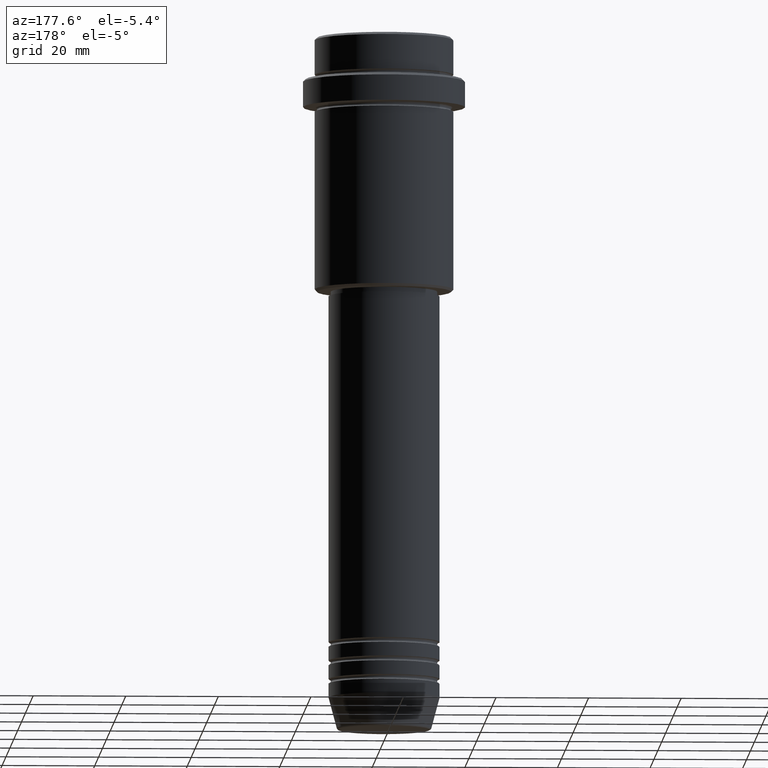
[diagram: clean part render]
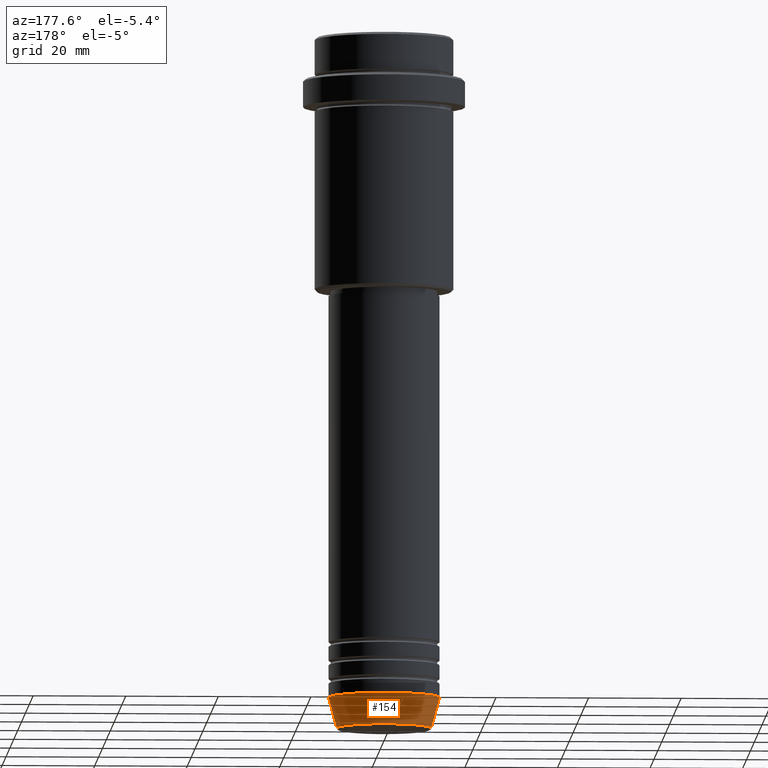
[diagram: same view with one face highlighted and labeled with its STEP entity id]
A machine part, auxiliary view. The second image highlights one B-rep face of the part: STEP entity #154.
In plain terms, the highlighted conical surface has half-angle 15 deg.
Its self-contained STEP definition (entity closure, byte-faithful):
#20 = VERTEX_POINT ( 'NONE', #1358 ) ;
#154 = ADVANCED_FACE ( 'NONE', ( #1075 ), #1260, .T. ) ;
#165 = DIRECTION ( 'NONE',  ( -0.000000000000000000, -0.000000000000000000, 1.000000000000000000 ) ) ;
#216 = ORIENTED_EDGE ( 'NONE', *, *, #729, .T. ) ;
#337 = AXIS2_PLACEMENT_3D ( 'NONE', #925, #165, #1242 ) ;
#359 = VECTOR ( 'NONE', #373, 1000.000000000000000 ) ;
#373 = DIRECTION ( 'NONE',  ( 0.2588190451025222938, 0.000000000000000000, 0.9659258262890678681 ) ) ;
#421 = CIRCLE ( 'NONE', #1219, 12.00000000000000000 ) ;
#467 = VERTEX_POINT ( 'NONE', #543 ) ;
#504 = EDGE_CURVE ( 'NONE', #783, #554, #1014, .T. ) ;
#543 = CARTESIAN_POINT ( 'NONE',  ( 12.00000000000000000, 0.000000000000000000, -143.0000000000000000 ) ) ;
#554 = VERTEX_POINT ( 'NONE', #873 ) ;
#575 = CARTESIAN_POINT ( 'NONE',  ( 0.000000000000000000, 0.000000000000000000, -143.0000000000000000 ) ) ;
#593 = DIRECTION ( 'NONE',  ( -0.000000000000000000, -0.000000000000000000, 1.000000000000000000 ) ) ;
#629 = CIRCLE ( 'NONE', #337, 10.22365507213718416 ) ;
#702 = EDGE_LOOP ( 'NONE', ( #216, #806, #939, #1251 ) ) ;
#718 = AXIS2_PLACEMENT_3D ( 'NONE', #875, #976, #854 ) ;
#729 = EDGE_CURVE ( 'NONE', #20, #783, #629, .T. ) ;
#769 = CARTESIAN_POINT ( 'NONE',  ( -12.00000000000000000, 1.469576158976823947E-15, -143.0000000000000000 ) ) ;
#783 = VERTEX_POINT ( 'NONE', #1393 ) ;
#806 = ORIENTED_EDGE ( 'NONE', *, *, #504, .T. ) ;
#854 = DIRECTION ( 'NONE',  ( 1.000000000000000000, 0.000000000000000000, 0.000000000000000000 ) ) ;
#873 = CARTESIAN_POINT ( 'NONE',  ( -12.00000000000000000, 1.469576158976823947E-15, -143.0000000000000000 ) ) ;
#875 = CARTESIAN_POINT ( 'NONE',  ( 0.000000000000000000, 0.000000000000000000, -143.0000000000000000 ) ) ;
#925 = CARTESIAN_POINT ( 'NONE',  ( 0.000000000000000000, 0.000000000000000000, -149.6294095225512422 ) ) ;
#939 = ORIENTED_EDGE ( 'NONE', *, *, #1225, .F. ) ;
#976 = DIRECTION ( 'NONE',  ( -0.000000000000000000, -0.000000000000000000, 1.000000000000000000 ) ) ;
#990 = VECTOR ( 'NONE', #1106, 1000.000000000000000 ) ;
#1014 = LINE ( 'NONE', #769, #990 ) ;
#1021 = DIRECTION ( 'NONE',  ( 1.000000000000000000, 0.000000000000000000, 0.000000000000000000 ) ) ;
#1028 = LINE ( 'NONE', #1340, #359 ) ;
#1075 = FACE_OUTER_BOUND ( 'NONE', #702, .T. ) ;
#1106 = DIRECTION ( 'NONE',  ( -0.2588190451025222938, 3.169619151431783430E-17, 0.9659258262890678681 ) ) ;
#1219 = AXIS2_PLACEMENT_3D ( 'NONE', #575, #593, #1021 ) ;
#1225 = EDGE_CURVE ( 'NONE', #467, #554, #421, .T. ) ;
#1242 = DIRECTION ( 'NONE',  ( 1.000000000000000000, 0.000000000000000000, 0.000000000000000000 ) ) ;
#1243 = EDGE_CURVE ( 'NONE', #20, #467, #1028, .T. ) ;
#1251 = ORIENTED_EDGE ( 'NONE', *, *, #1243, .F. ) ;
#1260 = CONICAL_SURFACE ( 'NONE', #718, 12.00000000000000000, 0.2617993877991510177 ) ;
#1340 = CARTESIAN_POINT ( 'NONE',  ( 12.00000000000000000, 0.000000000000000000, -143.0000000000000000 ) ) ;
#1358 = CARTESIAN_POINT ( 'NONE',  ( 10.22365507213718416, 0.000000000000000000, -149.6294095225512422 ) ) ;
#1393 = CARTESIAN_POINT ( 'NONE',  ( -10.22365507213718416, 1.360806402472382153E-15, -149.6294095225512422 ) ) ;